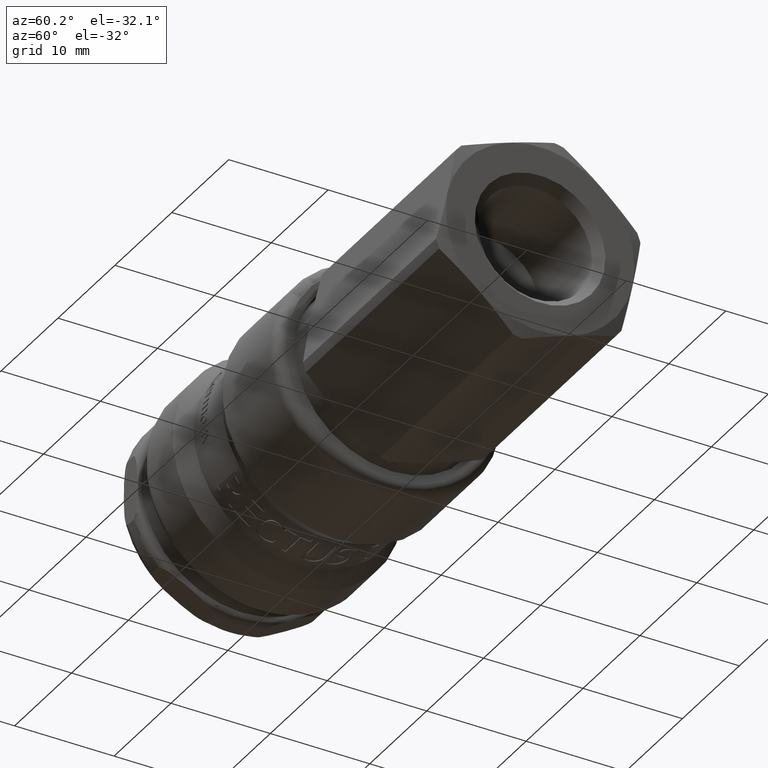
[diagram: clean part render]
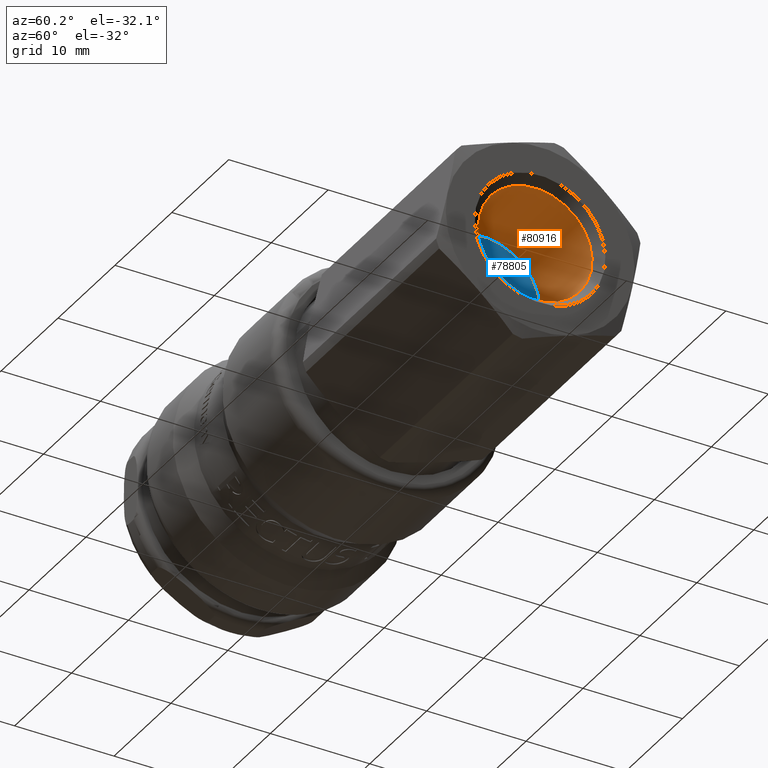
[diagram: same view with the hole feature highlighted: cylindrical wall and planar end face, labeled with their STEP entity ids]
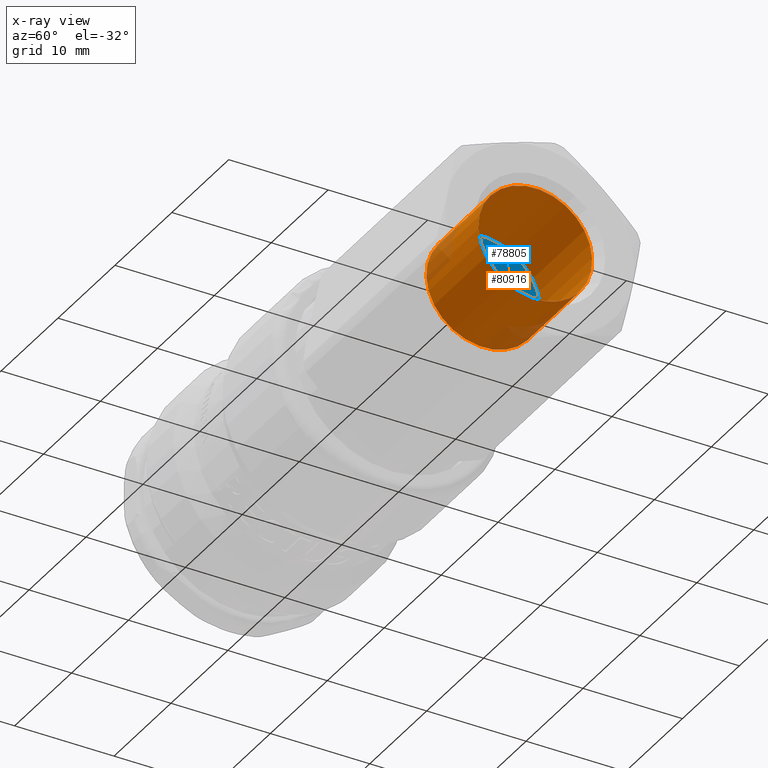
[diagram: x-ray of the same camera — body ghosted, the hole faces saturated]
A machine part, auxiliary view. The highlighted faces form one hole feature of diameter 11.445 mm: the cylindrical wall (entity #80916, orange) and its adjacent planar end face (entity #78805, blue) — they share a circular edge in the B-rep.
The next image is the same camera in x-ray (body ghosted, the hole faces saturated) — the bore reads through the body.
Wall:
#78794=CARTESIAN_POINT('',(44.849999999999994,-5.612519261700876,1.116527557670054));
#78795=VERTEX_POINT('',#78794);
#78796=CARTESIAN_POINT('',(44.849999999999994,0.0,0.0));
#78797=DIRECTION('',(-1.0,0.0,0.0));
#78798=DIRECTION('',(0.0,-0.980780998112866,0.195111849308878));
#78799=AXIS2_PLACEMENT_3D('',#78796,#78797,#78798);
#78800=CIRCLE('',#78799,5.7225);
#78801=EDGE_CURVE('',#78795,#78795,#78800,.T.);
#80897=CARTESIAN_POINT('',(49.849999999999994,0.0,0.0));
#80898=DIRECTION('',(-1.0,0.0,0.0));
#80899=DIRECTION('',(0.0,-0.980780998112866,0.195111849308878));
#80900=AXIS2_PLACEMENT_3D('',#80897,#80898,#80899);
#80901=CYLINDRICAL_SURFACE('',#80900,5.722499999999999);
#80902=ORIENTED_EDGE('',*,*,#78801,.T.);
#80903=EDGE_LOOP('',(#80902));
#80904=FACE_OUTER_BOUND('',#80903,.T.);
#80905=CARTESIAN_POINT('',(53.999999999999993,-5.612519261700875,1.116527557670055));
#80906=VERTEX_POINT('',#80905);
#80907=CARTESIAN_POINT('',(53.999999999999993,0.0,0.0));
#80908=DIRECTION('',(-1.0,0.0,0.0));
#80909=DIRECTION('',(0.0,0.980780998112866,-0.195111849308878));
#80910=AXIS2_PLACEMENT_3D('',#80907,#80908,#80909);
#80911=CIRCLE('',#80910,5.722499999999999);
#80912=EDGE_CURVE('',#80906,#80906,#80911,.T.);
#80913=ORIENTED_EDGE('',*,*,#80912,.F.);
#80914=EDGE_LOOP('',(#80913));
#80915=FACE_BOUND('',#80914,.T.);
#80916=ADVANCED_FACE('',(#80904,#80915),#80901,.F.);
End face:
#78789=CARTESIAN_POINT('',(44.849999999999994,3.674245060495057,0.0));
#78790=DIRECTION('',(1.0,0.0,0.0));
#78791=DIRECTION('',(0.0,0.0,-1.0));
#78792=AXIS2_PLACEMENT_3D('',#78789,#78790,#78791);
#78793=PLANE('',#78792);
#78794=CARTESIAN_POINT('',(44.849999999999994,-5.612519261700876,1.116527557670054));
#78795=VERTEX_POINT('',#78794);
#78796=CARTESIAN_POINT('',(44.849999999999994,0.0,0.0));
#78797=DIRECTION('',(-1.0,0.0,0.0));
#78798=DIRECTION('',(0.0,-0.980780998112866,0.195111849308878));
#78799=AXIS2_PLACEMENT_3D('',#78796,#78797,#78798);
#78800=CIRCLE('',#78799,5.7225);
#78801=EDGE_CURVE('',#78795,#78795,#78800,.T.);
#78802=ORIENTED_EDGE('',*,*,#78801,.F.);
#78803=EDGE_LOOP('',(#78802));
#78804=FACE_OUTER_BOUND('',#78803,.T.);
#78805=ADVANCED_FACE('',(#78804),#78793,.T.);